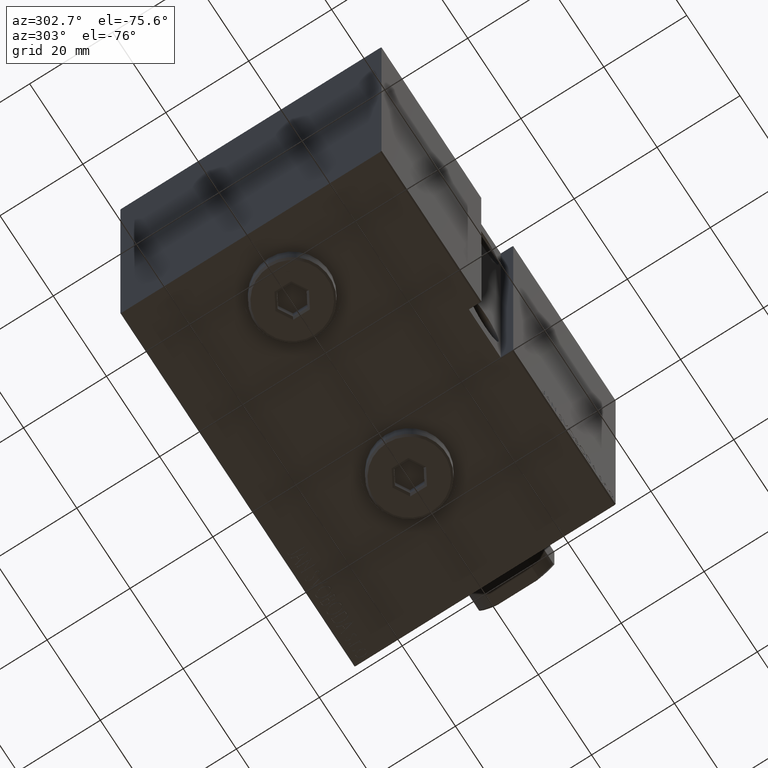
[diagram: clean part render]
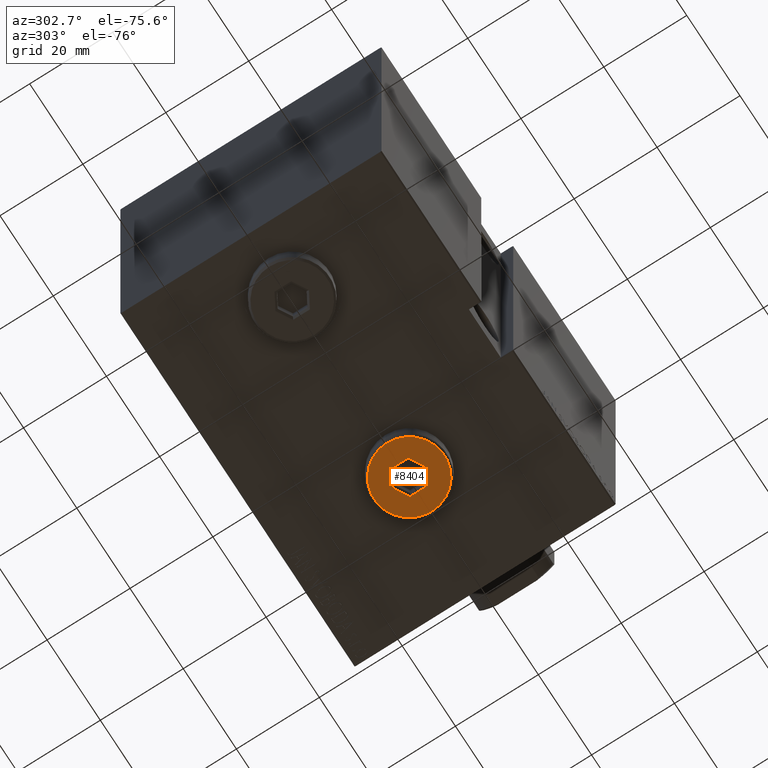
[diagram: same view with one face highlighted and labeled with its STEP entity id]
A machine part, auxiliary view. The second image highlights one B-rep face of the part: STEP entity #8404.
In plain terms, the highlighted planar face has unit normal (-0, 0, -1).
Its self-contained STEP definition (entity closure, byte-faithful):
#76 = LINE ( 'NONE', #3210, #15688 ) ;
#1312 = CIRCLE ( 'NONE', #36173, 8.500000000000010658 ) ;
#2985 = EDGE_LOOP ( 'NONE', ( #38040, #41935 ) ) ;
#3210 = CARTESIAN_POINT ( 'NONE',  ( 3.250000000000003109, 2.165063509461103042, 5.000000000000000000 ) ) ;
#3366 = EDGE_CURVE ( 'NONE', #14155, #24005, #7071, .T. ) ;
#3588 = VECTOR ( 'NONE', #33570, 1000.000000000000000 ) ;
#3680 = CARTESIAN_POINT ( 'NONE',  ( 0.000000000000000000, 0.000000000000000000, 5.000000000000000000 ) ) ;
#3751 = CARTESIAN_POINT ( 'NONE',  ( 3.500000000000006661, 2.020725942163694722, 5.000000000000000000 ) ) ;
#3842 = VERTEX_POINT ( 'NONE', #34809 ) ;
#5330 = DIRECTION ( 'NONE',  ( 0.000000000000000000, -1.000000000000000000, 0.000000000000000000 ) ) ;
#6099 = ORIENTED_EDGE ( 'NONE', *, *, #40974, .T. ) ;
#6445 = EDGE_CURVE ( 'NONE', #24005, #28789, #76, .T. ) ;
#7071 = LINE ( 'NONE', #27793, #10754 ) ;
#7499 = DIRECTION ( 'NONE',  ( 1.000000000000000000, 0.000000000000000000, -0.000000000000000000 ) ) ;
#8404 = ADVANCED_FACE ( 'NONE', ( #41767, #41112 ), #10621, .T. ) ;
#8598 = CARTESIAN_POINT ( 'NONE',  ( 0.2500000000000027756, -3.897114317029979347, 5.000000000000000000 ) ) ;
#9675 = CARTESIAN_POINT ( 'NONE',  ( -1.006139216460143630E-15, -4.041451884327387667, 5.000000000000000000 ) ) ;
#9896 = DIRECTION ( 'NONE',  ( 0.8660254037844387076, -0.4999999999999998890, 0.000000000000000000 ) ) ;
#10621 = PLANE ( 'NONE',  #28547 ) ;
#10754 = VECTOR ( 'NONE', #30909, 1000.000000000000000 ) ;
#12053 = VERTEX_POINT ( 'NONE', #28508 ) ;
#12287 = DIRECTION ( 'NONE',  ( 1.000000000000000000, 0.000000000000000000, 0.000000000000000000 ) ) ;
#13720 = VERTEX_POINT ( 'NONE', #9675 ) ;
#13833 = CARTESIAN_POINT ( 'NONE',  ( 1.590596867181068292E-15, 4.041451884327386779, 5.000000000000000000 ) ) ;
#14082 = EDGE_LOOP ( 'NONE', ( #29838, #39790, #24387, #25510, #6099, #29648 ) ) ;
#14155 = VERTEX_POINT ( 'NONE', #33819 ) ;
#14924 = CARTESIAN_POINT ( 'NONE',  ( -3.250000000000003109, -2.165063509461102598, 5.000000000000000000 ) ) ;
#15292 = VECTOR ( 'NONE', #5330, 1000.000000000000000 ) ;
#15409 = DIRECTION ( 'NONE',  ( 0.000000000000000000, 0.000000000000000000, 1.000000000000000000 ) ) ;
#15688 = VECTOR ( 'NONE', #9896, 1000.000000000000000 ) ;
#17284 = DIRECTION ( 'NONE',  ( 0.000000000000000000, 0.000000000000000000, 1.000000000000000000 ) ) ;
#17564 = EDGE_CURVE ( 'NONE', #37130, #3842, #1312, .T. ) ;
#17954 = VERTEX_POINT ( 'NONE', #36430 ) ;
#18021 = CARTESIAN_POINT ( 'NONE',  ( 8.500000000000010658, 1.071565949253934716E-15, 5.000000000000000000 ) ) ;
#19343 = EDGE_CURVE ( 'NONE', #13720, #17954, #25176, .T. ) ;
#22197 = DIRECTION ( 'NONE',  ( -0.8660254037844387076, -0.4999999999999998890, 0.000000000000000000 ) ) ;
#22312 = CARTESIAN_POINT ( 'NONE',  ( 0.000000000000000000, 0.000000000000000000, 5.000000000000000000 ) ) ;
#23449 = EDGE_CURVE ( 'NONE', #17954, #14155, #37784, .T. ) ;
#24005 = VERTEX_POINT ( 'NONE', #13833 ) ;
#24387 = ORIENTED_EDGE ( 'NONE', *, *, #6445, .T. ) ;
#25161 = LINE ( 'NONE', #35822, #15292 ) ;
#25176 = LINE ( 'NONE', #14924, #40456 ) ;
#25317 = LINE ( 'NONE', #8598, #42221 ) ;
#25510 = ORIENTED_EDGE ( 'NONE', *, *, #43729, .T. ) ;
#26905 = CARTESIAN_POINT ( 'NONE',  ( -3.500000000000006661, 1.732050807568878081, 5.000000000000000000 ) ) ;
#27793 = CARTESIAN_POINT ( 'NONE',  ( -0.2500000000000027756, 3.897114317029978459, 5.000000000000000000 ) ) ;
#28071 = AXIS2_PLACEMENT_3D ( 'NONE', #3680, #17284, #30855 ) ;
#28508 = CARTESIAN_POINT ( 'NONE',  ( 3.500000000000006661, -2.020725942163693833, 5.000000000000000000 ) ) ;
#28547 = AXIS2_PLACEMENT_3D ( 'NONE', #34650, #34437, #7499 ) ;
#28789 = VERTEX_POINT ( 'NONE', #3751 ) ;
#29648 = ORIENTED_EDGE ( 'NONE', *, *, #19343, .T. ) ;
#29838 = ORIENTED_EDGE ( 'NONE', *, *, #23449, .T. ) ;
#30855 = DIRECTION ( 'NONE',  ( 1.000000000000000000, 0.000000000000000000, 0.000000000000000000 ) ) ;
#30909 = DIRECTION ( 'NONE',  ( 0.8660254037844387076, 0.4999999999999998335, 0.000000000000000000 ) ) ;
#31620 = DIRECTION ( 'NONE',  ( -0.8660254037844385966, 0.4999999999999999445, 0.000000000000000000 ) ) ;
#33570 = DIRECTION ( 'NONE',  ( 0.000000000000000000, 1.000000000000000000, 0.000000000000000000 ) ) ;
#33819 = CARTESIAN_POINT ( 'NONE',  ( -3.500000000000006661, 2.020725942163692945, 5.000000000000000000 ) ) ;
#34437 = DIRECTION ( 'NONE',  ( 0.000000000000000000, 0.000000000000000000, 1.000000000000000000 ) ) ;
#34650 = CARTESIAN_POINT ( 'NONE',  ( 0.000000000000000000, 0.000000000000000000, 5.000000000000000000 ) ) ;
#34809 = CARTESIAN_POINT ( 'NONE',  ( -8.500000000000010658, 0.000000000000000000, 5.000000000000000000 ) ) ;
#35822 = CARTESIAN_POINT ( 'NONE',  ( 3.500000000000006661, -1.732050807568878303, 5.000000000000000000 ) ) ;
#36173 = AXIS2_PLACEMENT_3D ( 'NONE', #22312, #15409, #12287 ) ;
#36430 = CARTESIAN_POINT ( 'NONE',  ( -3.500000000000006661, -2.020725942163694278, 5.000000000000000000 ) ) ;
#37130 = VERTEX_POINT ( 'NONE', #18021 ) ;
#37784 = LINE ( 'NONE', #26905, #3588 ) ;
#38040 = ORIENTED_EDGE ( 'NONE', *, *, #43833, .T. ) ;
#38731 = CIRCLE ( 'NONE', #28071, 8.500000000000010658 ) ;
#39790 = ORIENTED_EDGE ( 'NONE', *, *, #3366, .T. ) ;
#40456 = VECTOR ( 'NONE', #31620, 1000.000000000000114 ) ;
#40974 = EDGE_CURVE ( 'NONE', #12053, #13720, #25317, .T. ) ;
#41112 = FACE_OUTER_BOUND ( 'NONE', #2985, .T. ) ;
#41767 = FACE_BOUND ( 'NONE', #14082, .T. ) ;
#41935 = ORIENTED_EDGE ( 'NONE', *, *, #17564, .T. ) ;
#42221 = VECTOR ( 'NONE', #22197, 1000.000000000000000 ) ;
#43729 = EDGE_CURVE ( 'NONE', #28789, #12053, #25161, .T. ) ;
#43833 = EDGE_CURVE ( 'NONE', #3842, #37130, #38731, .T. ) ;